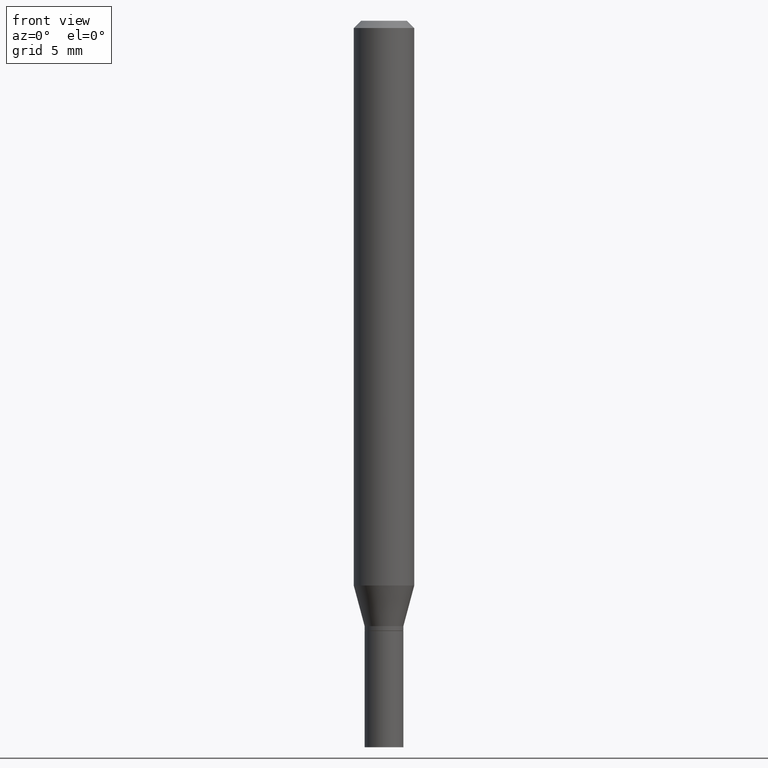
[diagram: clean part render]
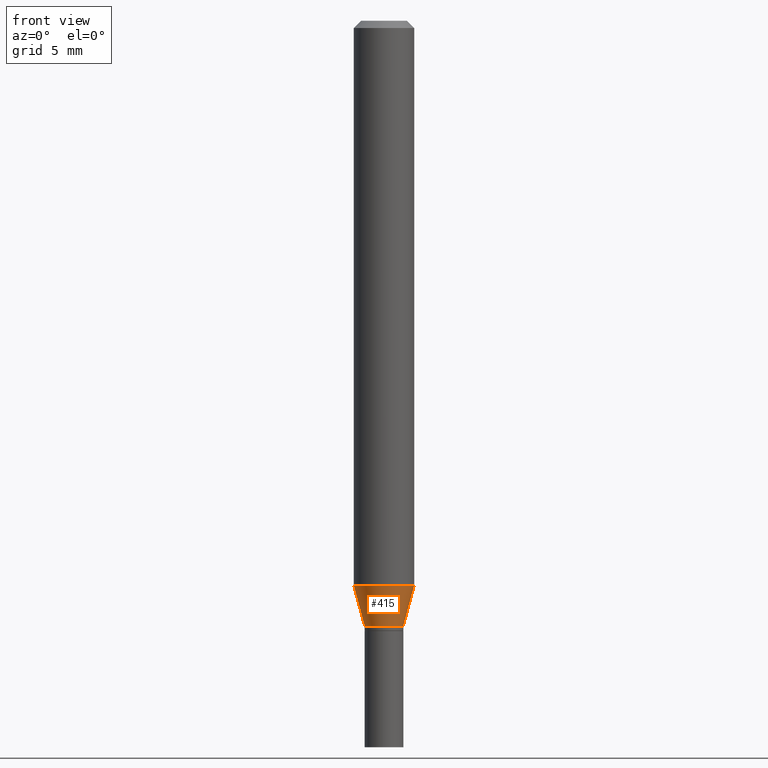
[diagram: same view with one face highlighted and labeled with its STEP entity id]
A machine part, front view. The second image highlights one B-rep face of the part: STEP entity #415.
In plain terms, the highlighted conical surface has half-angle 15 deg.
Its self-contained STEP definition (entity closure, byte-faithful):
#7 = VERTEX_POINT ( 'NONE', #165 ) ;
#14 = DIRECTION ( 'NONE',  ( 1.000000000000000000, -6.982962677686265133E-15, 0.000000000000000000 ) ) ;
#37 = CARTESIAN_POINT ( 'NONE',  ( 2.851487196488746564E-29, -4.071167994173503933E-15, -1.166028856829700144 ) ) ;
#43 = AXIS2_PLACEMENT_3D ( 'NONE', #235, #409, #359 ) ;
#64 = VECTOR ( 'NONE', #281, 39.37007874015748143 ) ;
#73 = CIRCLE ( 'NONE', #458, 0.06250000000000000000 ) ;
#77 = ORIENTED_EDGE ( 'NONE', *, *, #206, .F. ) ;
#94 = ORIENTED_EDGE ( 'NONE', *, *, #292, .T. ) ;
#125 = FACE_OUTER_BOUND ( 'NONE', #466, .T. ) ;
#136 = DIRECTION ( 'NONE',  ( 1.000000000000000000, -6.982962677686262766E-15, 0.000000000000000000 ) ) ;
#138 = VERTEX_POINT ( 'NONE', #164 ) ;
#149 = CARTESIAN_POINT ( 'NONE',  ( 3.056836007731421306E-29, -4.364351673553932471E-15, -1.250000000000000000 ) ) ;
#164 = CARTESIAN_POINT ( 'NONE',  ( 0.03999999999999990369, -4.643670180661382509E-15, -1.250000000000000000 ) ) ;
#165 = CARTESIAN_POINT ( 'NONE',  ( 0.06250000000000000000, -4.507603161528894814E-15, -1.166028856829700144 ) ) ;
#166 = VECTOR ( 'NONE', #317, 39.37007874015748143 ) ;
#175 = DIRECTION ( 'NONE',  ( -2.445468806185136597E-29, 3.491481338843145583E-15, 1.000000000000000000 ) ) ;
#177 = CIRCLE ( 'NONE', #43, 0.03999999999999990369 ) ;
#184 = ORIENTED_EDGE ( 'NONE', *, *, #249, .F. ) ;
#202 = CARTESIAN_POINT ( 'NONE',  ( -0.06250000000000000000, -3.627078784323441317E-15, -1.166028856829700144 ) ) ;
#206 = EDGE_CURVE ( 'NONE', #229, #7, #73, .T. ) ;
#215 = ORIENTED_EDGE ( 'NONE', *, *, #465, .T. ) ;
#219 = CARTESIAN_POINT ( 'NONE',  ( -0.03999999999999990369, -3.853606681786667125E-15, -1.250000000000000000 ) ) ;
#229 = VERTEX_POINT ( 'NONE', #202 ) ;
#235 = CARTESIAN_POINT ( 'NONE',  ( 3.056836007731421306E-29, -4.364351673553932471E-15, -1.250000000000000000 ) ) ;
#239 = LINE ( 'NONE', #347, #166 ) ;
#240 = CONICAL_SURFACE ( 'NONE', #276, 0.03999999999999990369, 0.2617993877991497409 ) ;
#249 = EDGE_CURVE ( 'NONE', #277, #229, #290, .T. ) ;
#276 = AXIS2_PLACEMENT_3D ( 'NONE', #149, #320, #14 ) ;
#277 = VERTEX_POINT ( 'NONE', #219 ) ;
#281 = DIRECTION ( 'NONE',  ( -0.2588190451025210725, 5.211531920934548675E-15, 0.9659258262890682012 ) ) ;
#290 = LINE ( 'NONE', #323, #64 ) ;
#292 = EDGE_CURVE ( 'NONE', #138, #7, #239, .T. ) ;
#317 = DIRECTION ( 'NONE',  ( 0.2588190451025210725, 1.565188264969624137E-15, 0.9659258262890682012 ) ) ;
#320 = DIRECTION ( 'NONE',  ( -2.445468806185136597E-29, 3.491481338843145583E-15, 1.000000000000000000 ) ) ;
#323 = CARTESIAN_POINT ( 'NONE',  ( -0.03999999999999990369, -4.080134579249892933E-15, -1.250000000000000000 ) ) ;
#347 = CARTESIAN_POINT ( 'NONE',  ( 0.03999999999999990369, -4.643670180661382509E-15, -1.250000000000000000 ) ) ;
#359 = DIRECTION ( 'NONE',  ( 1.000000000000000000, -6.982962677686265133E-15, 0.000000000000000000 ) ) ;
#409 = DIRECTION ( 'NONE',  ( -2.445468806185136597E-29, 3.491481338843145583E-15, 1.000000000000000000 ) ) ;
#415 = ADVANCED_FACE ( 'NONE', ( #125 ), #240, .T. ) ;
#458 = AXIS2_PLACEMENT_3D ( 'NONE', #37, #175, #136 ) ;
#465 = EDGE_CURVE ( 'NONE', #277, #138, #177, .T. ) ;
#466 = EDGE_LOOP ( 'NONE', ( #184, #215, #94, #77 ) ) ;